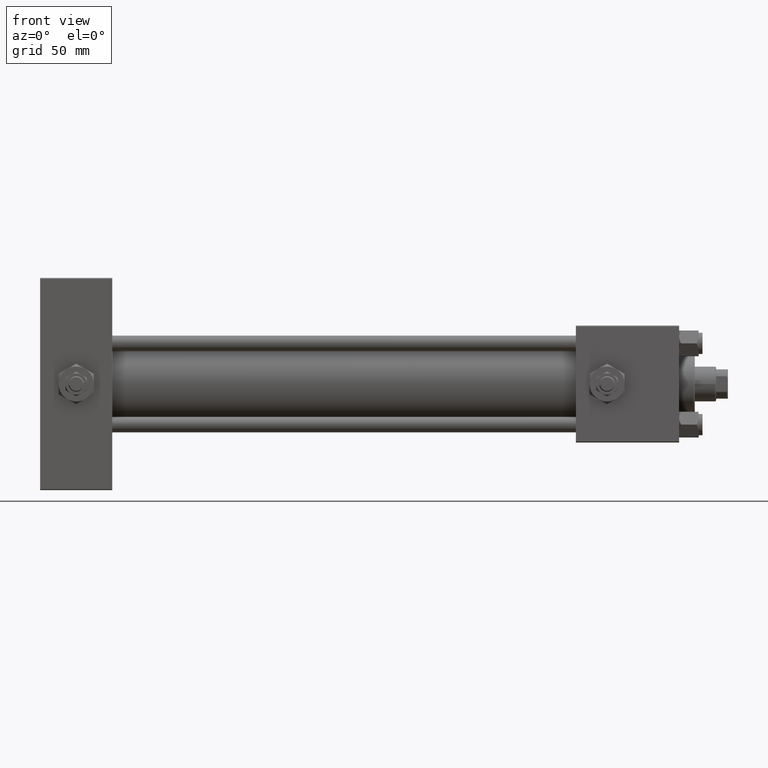
[diagram: clean part render]
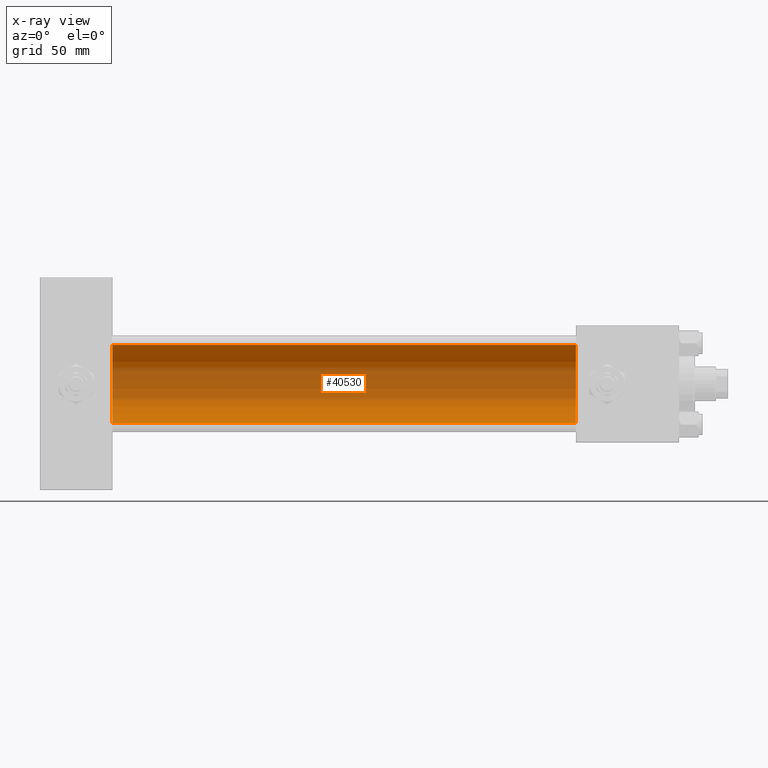
[diagram: x-ray — body ghosted, one internal face saturated and labeled with its STEP entity id]
A machine part, front view, then the same camera in x-ray: the body is ghosted and one INTERNAL B-rep face — a face not visible from any outside direction — is saturated and labeled: STEP entity #40530.
In plain terms, the highlighted cylindrical surface (partial cylindrical patch) has radius 20 mm, axis along (-1, -0, -0).
Its self-contained STEP definition (entity closure, byte-faithful):
#1768 = CARTESIAN_POINT ( 'NONE',  ( 274.9999999999999432, -2.602085213965210642E-15, 0.000000000000000000 ) ) ;
#1989 = DIRECTION ( 'NONE',  ( -1.000000000000000000, -0.000000000000000000, -0.000000000000000000 ) ) ;
#7015 = AXIS2_PLACEMENT_3D ( 'NONE', #47233, #11445, #11177 ) ;
#8197 = DIRECTION ( 'NONE',  ( 0.000000000000000000, 0.000000000000000000, -1.000000000000000000 ) ) ;
#8202 = LINE ( 'NONE', #19826, #37311 ) ;
#8457 = DIRECTION ( 'NONE',  ( 1.000000000000000000, 0.000000000000000000, 0.000000000000000000 ) ) ;
#11177 = DIRECTION ( 'NONE',  ( 0.000000000000000000, 0.000000000000000000, 1.000000000000000000 ) ) ;
#11445 = DIRECTION ( 'NONE',  ( -1.000000000000000000, -0.000000000000000000, -0.000000000000000000 ) ) ;
#11720 = CARTESIAN_POINT ( 'NONE',  ( 274.9999999999999432, -1.527916156705042519E-16, -20.00000000000000000 ) ) ;
#12162 = CARTESIAN_POINT ( 'NONE',  ( 37.00000000000000000, -2.602085213965210642E-15, 0.000000000000000000 ) ) ;
#12647 = CARTESIAN_POINT ( 'NONE',  ( 37.00000000000000000, -1.527916156705042519E-16, -20.00000000000000000 ) ) ;
#12794 = AXIS2_PLACEMENT_3D ( 'NONE', #12162, #8457, #8197 ) ;
#12944 = DIRECTION ( 'NONE',  ( -1.000000000000000000, -0.000000000000000000, -0.000000000000000000 ) ) ;
#14345 = VERTEX_POINT ( 'NONE', #43887 ) ;
#19826 = CARTESIAN_POINT ( 'NONE',  ( 274.9999999999999432, -2.602085213965210642E-15, 20.00000000000000000 ) ) ;
#21647 = EDGE_CURVE ( 'NONE', #34688, #14345, #24305, .T. ) ;
#21811 = DIRECTION ( 'NONE',  ( 0.000000000000000000, 0.000000000000000000, -1.000000000000000000 ) ) ;
#23153 = VERTEX_POINT ( 'NONE', #12647 ) ;
#23822 = CYLINDRICAL_SURFACE ( 'NONE', #7015, 20.00000000000000000 ) ;
#24305 = CIRCLE ( 'NONE', #28488, 20.00000000000000000 ) ;
#25526 = EDGE_LOOP ( 'NONE', ( #30277, #36850, #37784, #26989 ) ) ;
#26989 = ORIENTED_EDGE ( 'NONE', *, *, #34249, .F. ) ;
#28488 = AXIS2_PLACEMENT_3D ( 'NONE', #1768, #49680, #21811 ) ;
#30277 = ORIENTED_EDGE ( 'NONE', *, *, #42001, .F. ) ;
#30692 = LINE ( 'NONE', #42002, #41529 ) ;
#33844 = CIRCLE ( 'NONE', #12794, 20.00000000000000000 ) ;
#34249 = EDGE_CURVE ( 'NONE', #23153, #42779, #33844, .T. ) ;
#34688 = VERTEX_POINT ( 'NONE', #11720 ) ;
#36850 = ORIENTED_EDGE ( 'NONE', *, *, #21647, .T. ) ;
#37311 = VECTOR ( 'NONE', #12944, 1000.000000000000000 ) ;
#37784 = ORIENTED_EDGE ( 'NONE', *, *, #41524, .T. ) ;
#40530 = ADVANCED_FACE ( 'NONE', ( #47504 ), #23822, .F. ) ;
#41524 = EDGE_CURVE ( 'NONE', #14345, #42779, #8202, .T. ) ;
#41529 = VECTOR ( 'NONE', #1989, 1000.000000000000000 ) ;
#42001 = EDGE_CURVE ( 'NONE', #34688, #23153, #30692, .T. ) ;
#42002 = CARTESIAN_POINT ( 'NONE',  ( 274.9999999999999432, -1.527916156705042519E-16, -20.00000000000000000 ) ) ;
#42779 = VERTEX_POINT ( 'NONE', #44743 ) ;
#43887 = CARTESIAN_POINT ( 'NONE',  ( 274.9999999999999432, -2.602085213965210642E-15, 20.00000000000000000 ) ) ;
#44743 = CARTESIAN_POINT ( 'NONE',  ( 37.00000000000000000, -2.602085213965210642E-15, 20.00000000000000000 ) ) ;
#47233 = CARTESIAN_POINT ( 'NONE',  ( 274.9999999999999432, -2.602085213965210642E-15, 0.000000000000000000 ) ) ;
#47504 = FACE_OUTER_BOUND ( 'NONE', #25526, .T. ) ;
#49680 = DIRECTION ( 'NONE',  ( 1.000000000000000000, 0.000000000000000000, 0.000000000000000000 ) ) ;